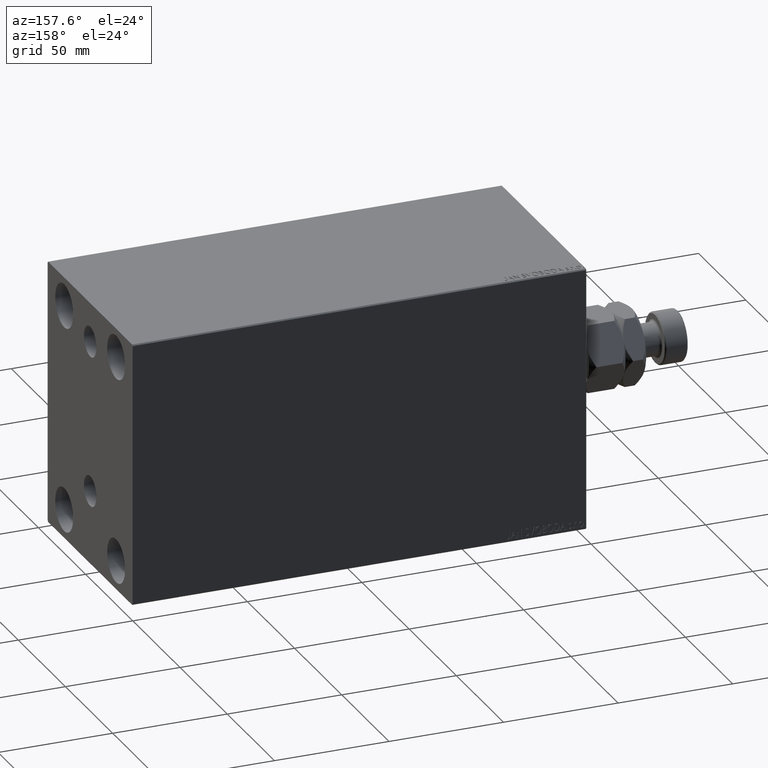
[diagram: clean part render]
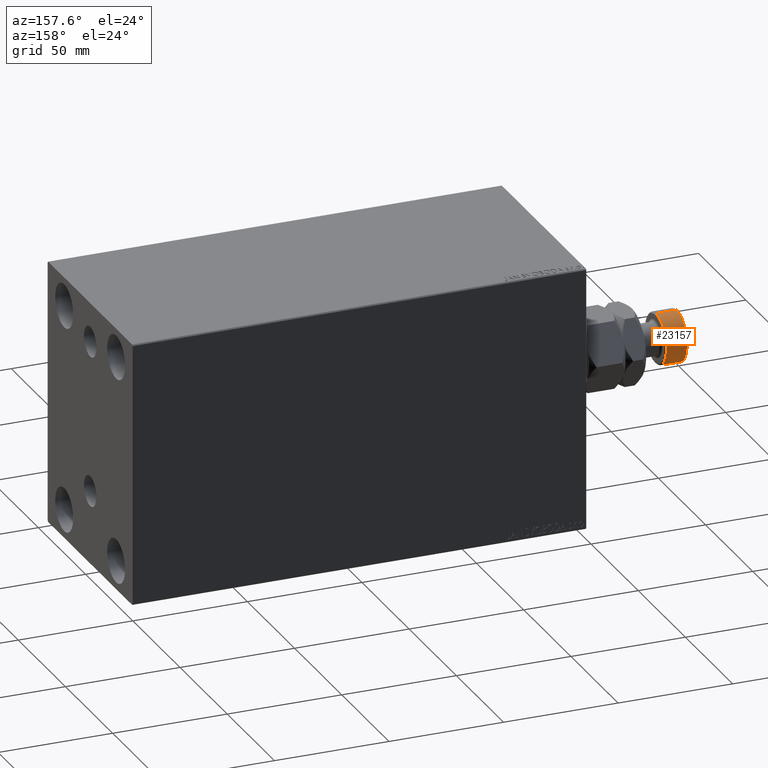
[diagram: same view with one face highlighted and labeled with its STEP entity id]
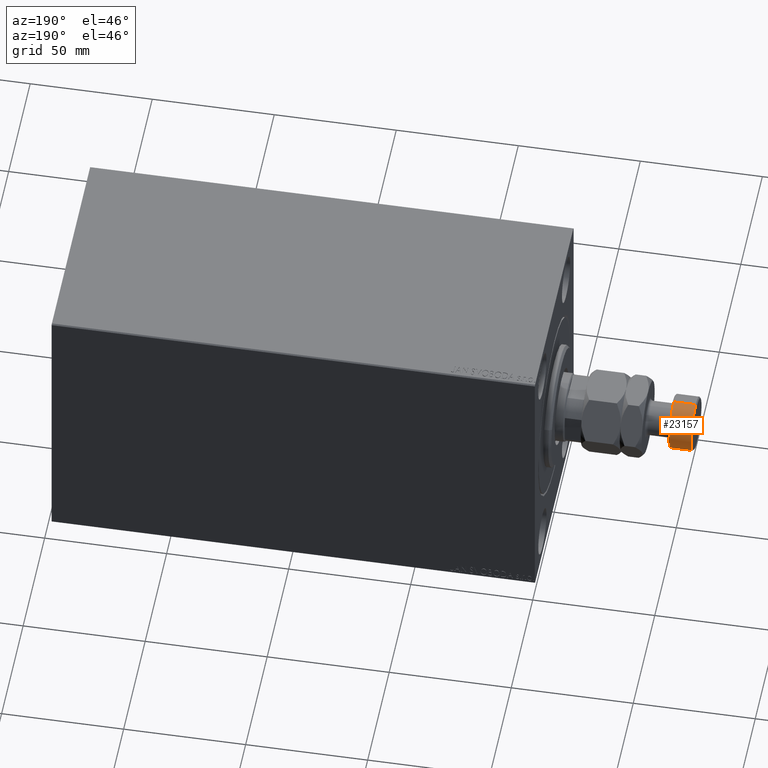
[diagram: same view with one face highlighted and labeled with its STEP entity id]
A machine part, auxiliary view. The second image highlights one B-rep face of the part: STEP entity #23157.
A second angle (auxiliary view) of the same face is appended — the face is thin or edge-on in the first view.
In plain terms, the highlighted cylindrical surface (edge-blend (fillet) strip) has radius 11 mm, axis along (1, -0, -0).
Its self-contained STEP definition (entity closure, byte-faithful):
#755 = ORIENTED_EDGE ( 'NONE', *, *, #26768, .T. ) ;
#791 = DIRECTION ( 'NONE',  ( -0.000000000000000000, -0.000000000000000000, -1.000000000000000000 ) ) ;
#1304 = CARTESIAN_POINT ( 'NONE',  ( 11.00000000000000000, 1.347111479062088405E-15, 44.50000000000001421 ) ) ;
#2200 = VECTOR ( 'NONE', #791, 1000.000000000000000 ) ;
#3327 = AXIS2_PLACEMENT_3D ( 'NONE', #29129, #36041, #39486 ) ;
#3624 = VERTEX_POINT ( 'NONE', #1304 ) ;
#5116 = ORIENTED_EDGE ( 'NONE', *, *, #43343, .T. ) ;
#7608 = DIRECTION ( 'NONE',  ( -1.000000000000000000, 0.000000000000000000, 0.000000000000000000 ) ) ;
#10456 = CARTESIAN_POINT ( 'NONE',  ( 0.000000000000000000, 0.000000000000000000, 44.50000000000001421 ) ) ;
#14135 = CIRCLE ( 'NONE', #16376, 11.00000000000000000 ) ;
#15174 = ORIENTED_EDGE ( 'NONE', *, *, #31774, .T. ) ;
#15976 = EDGE_LOOP ( 'NONE', ( #15174, #755, #5116, #34338 ) ) ;
#16376 = AXIS2_PLACEMENT_3D ( 'NONE', #10456, #27944, #41981 ) ;
#16907 = FACE_OUTER_BOUND ( 'NONE', #15976, .T. ) ;
#17600 = LINE ( 'NONE', #18280, #2200 ) ;
#18280 = CARTESIAN_POINT ( 'NONE',  ( -11.00000000000000000, 0.000000000000000000, 45.00000000000000711 ) ) ;
#19462 = CARTESIAN_POINT ( 'NONE',  ( 11.00000000000000000, 1.347111479062088405E-15, 45.00000000000000711 ) ) ;
#23157 = ADVANCED_FACE ( 'NONE', ( #16907 ), #28319, .T. ) ;
#23515 = VERTEX_POINT ( 'NONE', #25728 ) ;
#23906 = CIRCLE ( 'NONE', #3327, 11.00000000000000000 ) ;
#25633 = AXIS2_PLACEMENT_3D ( 'NONE', #34164, #39125, #7608 ) ;
#25728 = CARTESIAN_POINT ( 'NONE',  ( 11.00000000000000000, 1.347111479062088405E-15, 35.50000000000001421 ) ) ;
#26768 = EDGE_CURVE ( 'NONE', #3624, #23515, #30718, .T. ) ;
#27094 = VECTOR ( 'NONE', #34178, 1000.000000000000000 ) ;
#27236 = VERTEX_POINT ( 'NONE', #38923 ) ;
#27944 = DIRECTION ( 'NONE',  ( 0.000000000000000000, 0.000000000000000000, -1.000000000000000000 ) ) ;
#28319 = CYLINDRICAL_SURFACE ( 'NONE', #25633, 11.00000000000000000 ) ;
#29129 = CARTESIAN_POINT ( 'NONE',  ( 0.000000000000000000, 0.000000000000000000, 35.50000000000001421 ) ) ;
#30718 = LINE ( 'NONE', #19462, #27094 ) ;
#30861 = VERTEX_POINT ( 'NONE', #34180 ) ;
#30895 = EDGE_CURVE ( 'NONE', #30861, #27236, #17600, .T. ) ;
#31774 = EDGE_CURVE ( 'NONE', #30861, #3624, #14135, .T. ) ;
#34164 = CARTESIAN_POINT ( 'NONE',  ( 0.000000000000000000, 0.000000000000000000, 45.00000000000000711 ) ) ;
#34178 = DIRECTION ( 'NONE',  ( -0.000000000000000000, -0.000000000000000000, -1.000000000000000000 ) ) ;
#34180 = CARTESIAN_POINT ( 'NONE',  ( -11.00000000000000000, 0.000000000000000000, 44.50000000000001421 ) ) ;
#34338 = ORIENTED_EDGE ( 'NONE', *, *, #30895, .F. ) ;
#36041 = DIRECTION ( 'NONE',  ( -0.000000000000000000, -0.000000000000000000, 1.000000000000000000 ) ) ;
#38923 = CARTESIAN_POINT ( 'NONE',  ( -11.00000000000000000, 0.000000000000000000, 35.50000000000001421 ) ) ;
#39125 = DIRECTION ( 'NONE',  ( -0.000000000000000000, -0.000000000000000000, -1.000000000000000000 ) ) ;
#39486 = DIRECTION ( 'NONE',  ( 1.000000000000000000, 0.000000000000000000, 0.000000000000000000 ) ) ;
#41981 = DIRECTION ( 'NONE',  ( 1.000000000000000000, 0.000000000000000000, 0.000000000000000000 ) ) ;
#43343 = EDGE_CURVE ( 'NONE', #23515, #27236, #23906, .T. ) ;